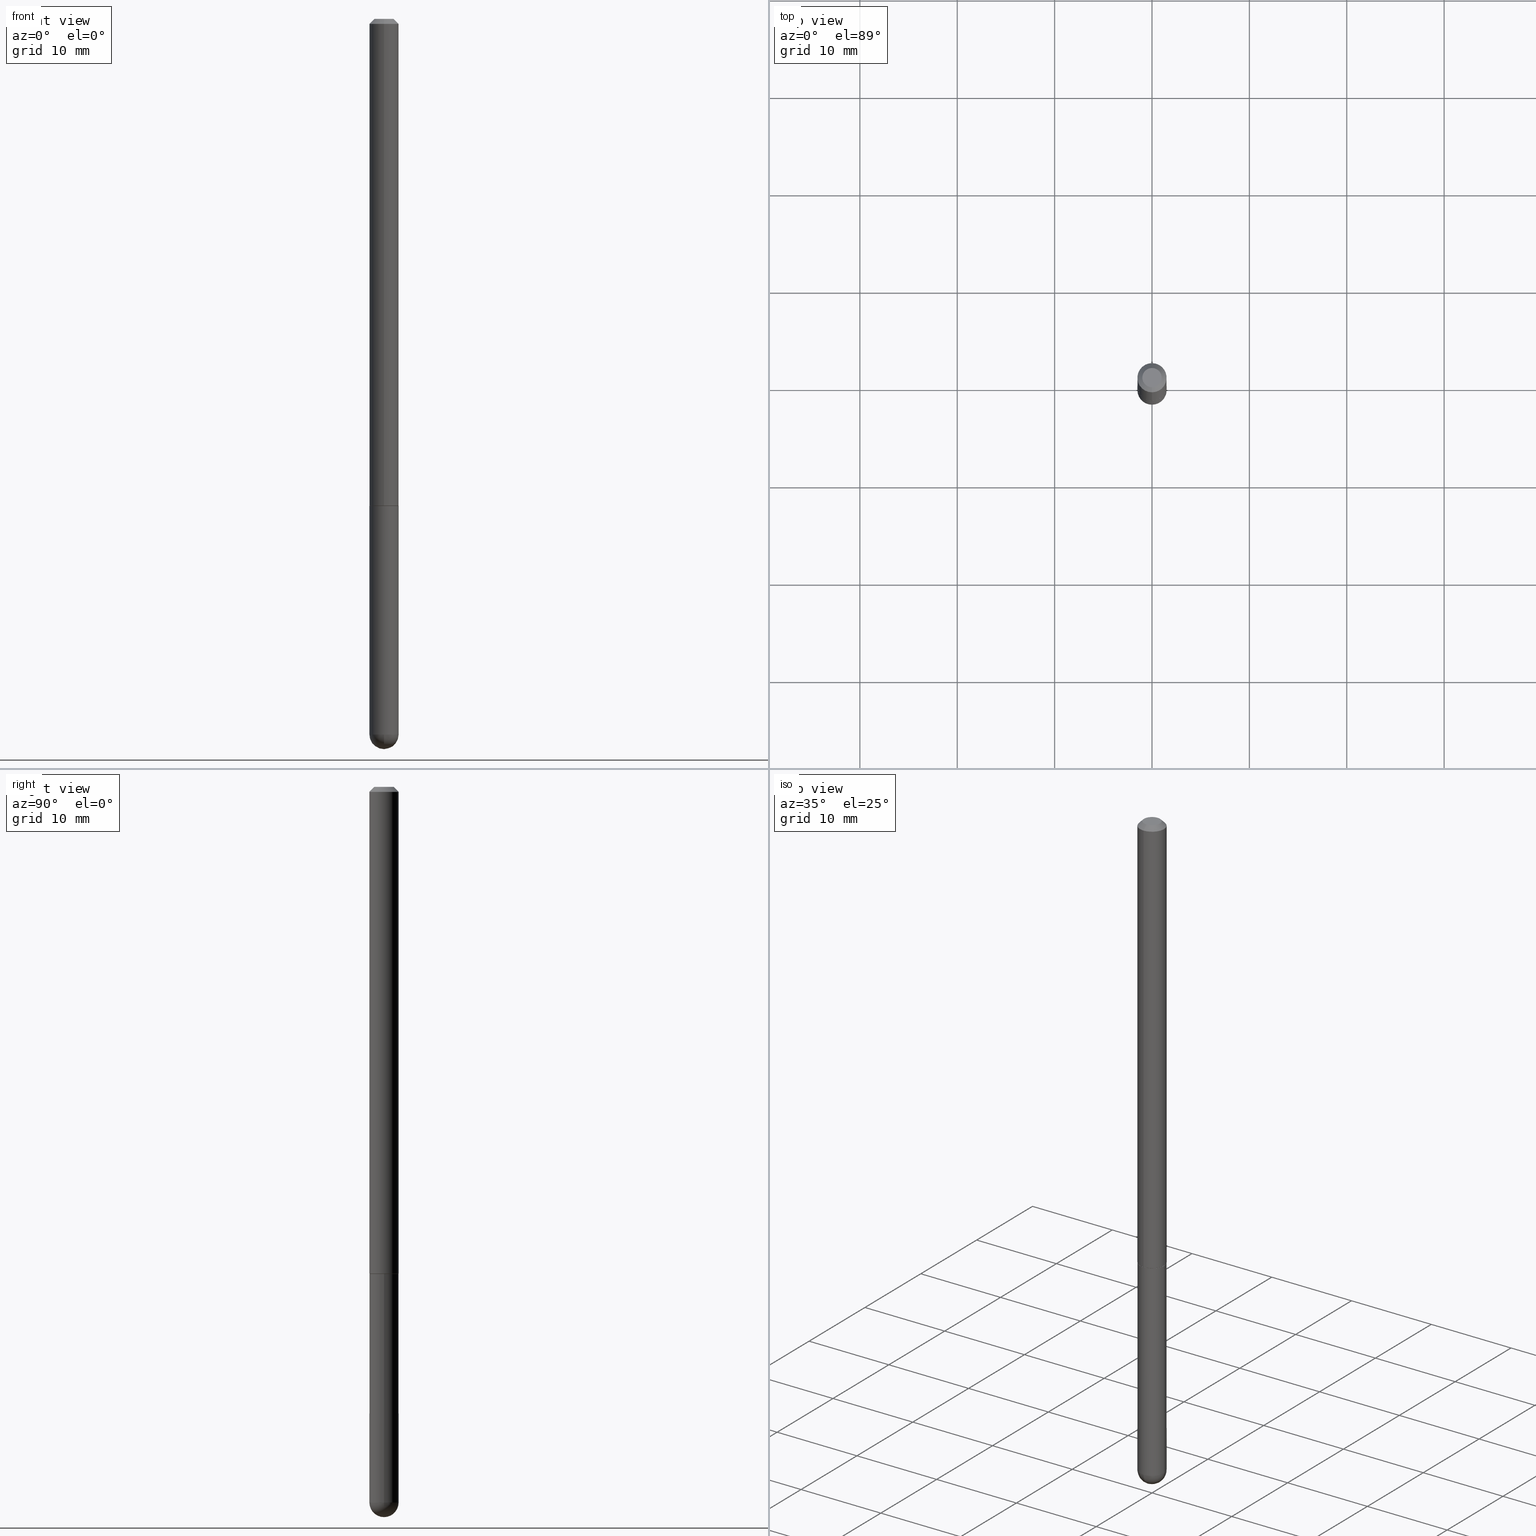
[diagram: canonical four-view strip — front | top / right | iso, engineering-drawing reading convention]
A machine part, canonical four-view strip (front | top / right | iso — engineering-drawing reading convention). The complete STEP part file that produces these views, byte-faithful:
ISO-10303-21;
HEADER;
FILE_DESCRIPTION (( 'STEP AP203' ),
    '1' );
FILE_NAME ('43502.STEP',
    '2024-04-10T11:43:39',
    ( '' ),
    ( '' ),
    'SwSTEP 2.0',
    'SolidWorks 2023',
    '' );
FILE_SCHEMA (( 'CONFIG_CONTROL_DESIGN' ));
ENDSEC;

DATA;
#1 = CYLINDRICAL_SURFACE ( 'NONE', #202, 0.05905000000000010935 ) ;
#2 = ORIENTED_EDGE ( 'NONE', *, *, #91, .F. ) ;
#3 = VERTEX_POINT ( 'NONE', #348 ) ;
#4 = LOCAL_TIME ( 7, 43, 39.00000000000000000, #69 ) ;
#5 = EDGE_LOOP ( 'NONE', ( #164, #59, #326, #234, #73 ) ) ;
#6 = CARTESIAN_POINT ( 'NONE',  ( -3.365074267906958048E-16, -0.03905000000000070914, -5.730290039444684587E-16 ) ) ;
#7 = CARTESIAN_POINT ( 'NONE',  ( 4.827955387920569283E-29, -6.852860554336525173E-15, -1.968499999999999694 ) ) ;
#8 = LINE ( 'NONE', #229, #356 ) ;
#9 = ORIENTED_EDGE ( 'NONE', *, *, #318, .F. ) ;
#10 = EDGE_CURVE ( 'NONE', #196, #380, #329, .T. ) ;
#11 = PERSON_AND_ORGANIZATION ( #197, #219 ) ;
#12 = AXIS2_PLACEMENT_3D ( 'NONE', #41, #78, #293 ) ;
#13 = PERSON_AND_ORGANIZATION ( #197, #219 ) ;
#14 = DIRECTION ( 'NONE',  ( 6.982962677686265922E-15, 1.000000000000000000, -3.469747663417776213E-15 ) ) ;
#15 = CARTESIAN_POINT ( 'NONE',  ( 4.195754854663646379E-16, 0.05904999999999335780, -1.967500000000000027 ) ) ;
#16 = FACE_OUTER_BOUND ( 'NONE', #40, .T. ) ;
#17 = DIRECTION ( 'NONE',  ( -1.000000000000000000, 6.982962677686265922E-15, -4.883557194083112340E-29 ) ) ;
#18 = DIRECTION ( 'NONE',  ( 6.982962677686265922E-15, 1.000000000000000000, -3.469747663417776213E-15 ) ) ;
#19 = AXIS2_PLACEMENT_3D ( 'NONE', #335, #17, #94 ) ;
#20 = CC_DESIGN_APPROVAL ( #125, ( #243 ) ) ;
#21 = DIRECTION ( 'NONE',  ( -2.445468806185136597E-29, 3.491481338843145583E-15, 1.000000000000000000 ) ) ;
#22 = VERTEX_POINT ( 'NONE', #6 ) ;
#23 = FACE_OUTER_BOUND ( 'NONE', #117, .T. ) ;
#24 = DIRECTION ( 'NONE',  ( -2.452606242276133797E-29, 3.481260124123203654E-15, 1.000000000000000000 ) ) ;
#25 = EDGE_LOOP ( 'NONE', ( #231, #295, #254, #381 ) ) ;
#26 = CARTESIAN_POINT ( 'NONE',  ( 3.425143193405141365E-16, 0.03905000000000070914, -8.449154196384955835E-16 ) ) ;
#27 = EDGE_CURVE ( 'NONE', #178, #187, #145, .T. ) ;
#28 = CIRCLE ( 'NONE', #134, 0.05905000000000020649 ) ;
#29 = CIRCLE ( 'NONE', #268, 0.05905000000000001914 ) ;
#30 = COORDINATED_UNIVERSAL_TIME_OFFSET ( 5, 0, .BEHIND. ) ;
#31 = ORIENTED_EDGE ( 'NONE', *, *, #224, .T. ) ;
#32 = LINE ( 'NONE', #401, #407 ) ;
#33 = CARTESIAN_POINT ( 'NONE',  ( 0.000000000000000000, 0.000000000000000000, 0.000000000000000000 ) ) ;
#34 = EDGE_CURVE ( 'NONE', #22, #364, #8, .T. ) ;
#35 = LENGTH_MEASURE_WITH_UNIT ( LENGTH_MEASURE( 0.02539999999999999897 ), #314 );
#36 = APPROVAL_STATUS ( 'not_yet_approved' ) ;
#37 = DIRECTION ( 'NONE',  ( -6.982962677686265922E-15, -1.000000000000000000, 3.481260124123204048E-15 ) ) ;
#38 = CC_DESIGN_SECURITY_CLASSIFICATION ( #194, ( #243 ) ) ;
#39 = EDGE_LOOP ( 'NONE', ( #292, #289, #359, #100 ) ) ;
#40 = EDGE_LOOP ( 'NONE', ( #74, #230, #351, #110 ) ) ;
#41 = CARTESIAN_POINT ( 'NONE',  ( 4.905212484552284025E-31, -6.962520248246431022E-17, -0.02000000000000006981 ) ) ;
#42 = ADVANCED_FACE ( 'NONE', ( #195 ), #320, .F. ) ;
#43 =( GEOMETRIC_REPRESENTATION_CONTEXT ( 3 ) GLOBAL_UNCERTAINTY_ASSIGNED_CONTEXT ( ( #369 ) ) GLOBAL_UNIT_ASSIGNED_CONTEXT ( ( #133, #287, #279 ) ) REPRESENTATION_CONTEXT ( 'NONE', 'WORKASPACE' ) );
#44 = DIRECTION ( 'NONE',  ( 1.000000000000000000, -6.982962677686270655E-15, 0.000000000000000000 ) ) ;
#45 = ORIENTED_EDGE ( 'NONE', *, *, #249, .T. ) ;
#46 = CARTESIAN_POINT ( 'NONE',  ( 6.745455579984352556E-29, -1.057765649241740097E-14, -2.893749999999999822 ) ) ;
#47 = ADVANCED_FACE ( 'NONE', ( #209 ), #64, .T. ) ;
#48 = EDGE_CURVE ( 'NONE', #76, #267, #271, .T. ) ;
#49 = CALENDAR_DATE ( 2024, 10, 4 ) ;
#50 = DIRECTION ( 'NONE',  ( 2.452606242276133797E-29, -3.481260124123203654E-15, -1.000000000000000000 ) ) ;
#51 = PERSON_AND_ORGANIZATION ( #197, #219 ) ;
#52 = DIRECTION ( 'NONE',  ( -6.982962677686265922E-15, -1.000000000000000000, 4.706025828879006993E-15 ) ) ;
#53 = FACE_OUTER_BOUND ( 'NONE', #5, .T. ) ;
#54 = AXIS2_PLACEMENT_3D ( 'NONE', #33, #221, #129 ) ;
#55 = CC_DESIGN_DATE_AND_TIME_ASSIGNMENT ( #344, #193, ( #147 ) ) ;
#56 = DIRECTION ( 'NONE',  ( -4.937700262164884886E-15, -0.7071067811865933139, 0.7071067811865017205 ) ) ;
#57 = APPROVAL_ROLE ( '' ) ;
#58 = CIRCLE ( 'NONE', #343, 0.05905000000000001914 ) ;
#59 = ORIENTED_EDGE ( 'NONE', *, *, #10, .T. ) ;
#60 = APPLICATION_PROTOCOL_DEFINITION ( 'international standard', 'config_control_design', 1994, #406 ) ;
#61 = EDGE_CURVE ( 'NONE', #201, #144, #89, .T. ) ;
#62 = CARTESIAN_POINT ( 'NONE',  ( 6.745455579984352556E-29, -1.057765649241740097E-14, -2.893749999999999822 ) ) ;
#63 = MECHANICAL_CONTEXT ( 'NONE', #346, 'mechanical' ) ;
#64 = CYLINDRICAL_SURFACE ( 'NONE', #87, 0.05905000000000010935 ) ;
#65 = DIRECTION ( 'NONE',  ( -2.452606242276133797E-29, 3.481260124123203654E-15, 1.000000000000000000 ) ) ;
#66 = VECTOR ( 'NONE', #56, 39.37007874015748143 ) ;
#67 = CIRCLE ( 'NONE', #283, 0.05905000000000025506 ) ;
#68 = APPROVAL_ROLE ( '' ) ;
#69 = COORDINATED_UNIVERSAL_TIME_OFFSET ( 5, 0, .BEHIND. ) ;
#70 = DIRECTION ( 'NONE',  ( -2.445468806185136597E-29, 3.491481338843145583E-15, 1.000000000000000000 ) ) ;
#71 = CARTESIAN_POINT ( 'NONE',  ( 1.738829672240105869E-44, -2.468116690021116626E-30, -7.089722117914819718E-16 ) ) ;
#72 = AXIS2_PLACEMENT_3D ( 'NONE', #327, #154, #260 ) ;
#73 = ORIENTED_EDGE ( 'NONE', *, *, #304, .F. ) ;
#74 = ORIENTED_EDGE ( 'NONE', *, *, #34, .F. ) ;
#75 = ADVANCED_FACE ( 'NONE', ( #122 ), #247, .T. ) ;
#76 = VERTEX_POINT ( 'NONE', #280 ) ;
#77 = CARTESIAN_POINT ( 'NONE',  ( 4.123439461173745750E-16, 0.05904999999999994975, -0.02000000000000027450 ) ) ;
#78 = DIRECTION ( 'NONE',  ( -2.452606242276133797E-29, 3.481260124123203654E-15, 1.000000000000000000 ) ) ;
#79 = ORIENTED_EDGE ( 'NONE', *, *, #61, .F. ) ;
#80 = AXIS2_PLACEMENT_3D ( 'NONE', #158, #21, #399 ) ;
#81 = LOCAL_TIME ( 7, 43, 39.00000000000000000, #92 ) ;
#82 = ORIENTED_EDGE ( 'NONE', *, *, #61, .T. ) ;
#83 = EDGE_LOOP ( 'NONE', ( #113, #290 ) ) ;
#84 = CARTESIAN_POINT ( 'NONE',  ( 4.827955387920569283E-29, -6.852860554336525173E-15, -1.968499999999999694 ) ) ;
#85 = FACE_OUTER_BOUND ( 'NONE', #259, .T. ) ;
#86 = DIRECTION ( 'NONE',  ( -2.445468806185136597E-29, 3.491481338843145583E-15, 1.000000000000000000 ) ) ;
#87 = AXIS2_PLACEMENT_3D ( 'NONE', #237, #150, #300 ) ;
#88 = DIRECTION ( 'NONE',  ( -2.452606242276133797E-29, 3.481260124123203654E-15, 1.000000000000000000 ) ) ;
#89 = CIRCLE ( 'NONE', #80, 0.05905000000000001914 ) ;
#90 = AXIS2_PLACEMENT_3D ( 'NONE', #387, #392, #118 ) ;
#91 = EDGE_CURVE ( 'NONE', #267, #364, #245, .T. ) ;
#92 = COORDINATED_UNIVERSAL_TIME_OFFSET ( 5, 0, .BEHIND. ) ;
#93 = CARTESIAN_POINT ( 'NONE',  ( 4.905212484552284025E-31, -6.962520248246431022E-17, -0.02000000000000006981 ) ) ;
#94 = DIRECTION ( 'NONE',  ( 6.982962677686265922E-15, 1.000000000000000000, 0.000000000000000000 ) ) ;
#95 = FACE_OUTER_BOUND ( 'NONE', #108, .T. ) ;
#96 = LOCAL_TIME ( 7, 43, 39.00000000000000000, #312 ) ;
#97 = DIRECTION ( 'NONE',  ( -1.000000000000000000, 7.105427357601001070E-15, -4.926315508542082329E-29 ) ) ;
#98 = DIRECTION ( 'NONE',  ( -2.452606242276133237E-29, 3.481260124123204048E-15, 1.000000000000000000 ) ) ;
#99 = EDGE_CURVE ( 'NONE', #267, #178, #28, .T. ) ;
#100 = ORIENTED_EDGE ( 'NONE', *, *, #347, .F. ) ;
#101 = CARTESIAN_POINT ( 'NONE',  ( -4.195754854662709114E-16, -0.05905000000001047605, -2.893749999999999822 ) ) ;
#102 = APPROVAL_ROLE ( '' ) ;
#103 = SPHERICAL_SURFACE ( 'NONE', #152, 0.05905000000000025506 ) ;
#104 = PERSON_AND_ORGANIZATION ( #197, #219 ) ;
#105 = PLANE ( 'NONE',  #263 ) ;
#106 = PERSON_AND_ORGANIZATION_ROLE ( 'creator' ) ;
#107 = ADVANCED_FACE ( 'NONE', ( #95 ), #167, .T. ) ;
#108 = EDGE_LOOP ( 'NONE', ( #353, #321, #266, #198 ) ) ;
#109 = PRODUCT ( '43502', '43502', '', ( #63 ) ) ;
#110 = ORIENTED_EDGE ( 'NONE', *, *, #347, .T. ) ;
#111 = ORIENTED_EDGE ( 'NONE', *, *, #99, .F. ) ;
#112 = EDGE_CURVE ( 'NONE', #178, #267, #375, .T. ) ;
#113 = ORIENTED_EDGE ( 'NONE', *, *, #168, .T. ) ;
#114 = ORIENTED_EDGE ( 'NONE', *, *, #205, .T. ) ;
#115 = PERSON_AND_ORGANIZATION_ROLE ( 'classification_officer' ) ;
#116 = CC_DESIGN_PERSON_AND_ORGANIZATION_ASSIGNMENT ( #51, #179, ( #243 ) ) ;
#117 = EDGE_LOOP ( 'NONE', ( #31, #236, #9, #146, #82 ) ) ;
#118 = DIRECTION ( 'NONE',  ( 1.000000000000000000, -6.982962677686270655E-15, 0.000000000000000000 ) ) ;
#119 = CARTESIAN_POINT ( 'NONE',  ( 0.000000000000000000, 0.000000000000000000, 0.000000000000000000 ) ) ;
#120 = CIRCLE ( 'NONE', #338, 0.03905000000000070914 ) ;
#121 = CIRCLE ( 'NONE', #398, 0.05905000000000025506 ) ;
#122 = FACE_OUTER_BOUND ( 'NONE', #171, .T. ) ;
#123 = DIRECTION ( 'NONE',  ( -2.445468806185136877E-29, 3.491481338843145188E-15, 1.000000000000000000 ) ) ;
#124 = DIRECTION ( 'NONE',  ( 6.982962677686265922E-15, 1.000000000000000000, 0.000000000000000000 ) ) ;
#125 = APPROVAL ( #36, 'UNSPECIFIED' ) ;
#126 = CLOSED_SHELL ( 'NONE', ( #330, #367, #75, #241, #294 ) ) ;
#127 = AXIS2_PLACEMENT_3D ( 'NONE', #151, #396, #176 ) ;
#128 = DIRECTION ( 'NONE',  ( -2.452606242276133797E-29, 3.481260124123203654E-15, 1.000000000000000000 ) ) ;
#129 = DIRECTION ( 'NONE',  ( 1.000000000000000000, 0.000000000000000000, 0.000000000000000000 ) ) ;
#130 = DIRECTION ( 'NONE',  ( -6.982962677686265922E-15, -1.000000000000000000, 4.706025828879006993E-15 ) ) ;
#131 = ORIENTED_EDGE ( 'NONE', *, *, #304, .T. ) ;
#132 = DIRECTION ( 'NONE',  ( 4.937700262164541731E-15, 0.7071067811865442421, -0.7071067811865507924 ) ) ;
#133 =( CONVERSION_BASED_UNIT ( 'INCH', #35 ) LENGTH_UNIT ( ) NAMED_UNIT ( #354 ) );
#134 = AXIS2_PLACEMENT_3D ( 'NONE', #395, #185, #402 ) ;
#135 = APPROVAL_PERSON_ORGANIZATION ( #11, #160, #57 ) ;
#136 = ADVANCED_FACE ( 'NONE', ( #235 ), #105, .F. ) ;
#137 = DIRECTION ( 'NONE',  ( -2.452606242276133797E-29, 3.481260124123203654E-15, 1.000000000000000000 ) ) ;
#138 = DIRECTION ( 'NONE',  ( 6.982962677686266711E-15, 1.000000000000000000, 0.000000000000000000 ) ) ;
#139 = EDGE_LOOP ( 'NONE', ( #285, #114, #111, #386 ) ) ;
#140 = CIRCLE ( 'NONE', #388, 0.05804999999999999744 ) ;
#141 = CIRCLE ( 'NONE', #265, 0.05905000000000001914 ) ;
#142 = CARTESIAN_POINT ( 'NONE',  ( 7.076575357898237682E-29, -1.010347412427735067E-14, -2.893749999999999822 ) ) ;
#143 = MANIFOLD_SOLID_BREP ( 'Body-Move/Copy2[2]', #282 ) ;
#144 = VERTEX_POINT ( 'NONE', #222 ) ;
#145 = LINE ( 'NONE', #203, #217 ) ;
#146 = ORIENTED_EDGE ( 'NONE', *, *, #397, .F. ) ;
#147 = PRODUCT_DEFINITION ( 'UNKNOWN', '', #243, #148 ) ;
#148 = DESIGN_CONTEXT ( 'detailed design', #406, 'design' ) ;
#149 = ORIENTED_EDGE ( 'NONE', *, *, #27, .T. ) ;
#150 = DIRECTION ( 'NONE',  ( -2.452606242276133797E-29, 3.481260124123203654E-15, 1.000000000000000000 ) ) ;
#151 = CARTESIAN_POINT ( 'NONE',  ( 1.738829672240105869E-44, -2.468116690021116626E-30, -7.089722117914819718E-16 ) ) ;
#152 = AXIS2_PLACEMENT_3D ( 'NONE', #62, #409, #124 ) ;
#153 = SHAPE_DEFINITION_REPRESENTATION ( #345, #223 ) ;
#154 = DIRECTION ( 'NONE',  ( 2.438088387897960049E-29, -3.491481338843145188E-15, -1.000000000000000000 ) ) ;
#155 = DIRECTION ( 'NONE',  ( -2.445468806185136597E-29, 3.491481338843145583E-15, 1.000000000000000000 ) ) ;
#156 = EDGE_CURVE ( 'NONE', #350, #76, #140, .T. ) ;
#157 = DIRECTION ( 'NONE',  ( 1.000000000000000000, -6.982962677686270655E-15, 0.000000000000000000 ) ) ;
#158 = CARTESIAN_POINT ( 'NONE',  ( 7.076575357898237682E-29, -1.010347412427735067E-14, -2.893749999999999822 ) ) ;
#159 = CARTESIAN_POINT ( 'NONE',  ( 7.076575357898237682E-29, -1.010347412427735067E-14, -2.893749999999999822 ) ) ;
#160 = APPROVAL ( #391, 'UNSPECIFIED' ) ;
#161 = CARTESIAN_POINT ( 'NONE',  ( 0.000000000000000000, 0.000000000000000000, 0.000000000000000000 ) ) ;
#162 = DIRECTION ( 'NONE',  ( -7.105427357601001070E-15, -1.000000000000000000, 0.000000000000000000 ) ) ;
#163 = ADVANCED_FACE ( 'NONE', ( #166 ), #1, .T. ) ;
#164 = ORIENTED_EDGE ( 'NONE', *, *, #306, .F. ) ;
#165 = DIRECTION ( 'NONE',  ( -2.445468806185136597E-29, 3.491481338843145583E-15, 1.000000000000000000 ) ) ;
#166 = FACE_OUTER_BOUND ( 'NONE', #39, .T. ) ;
#167 = CONICAL_SURFACE ( 'NONE', #324, 0.05905000000000001914, 0.7853981633974471688 ) ;
#168 = EDGE_CURVE ( 'NONE', #352, #22, #120, .T. ) ;
#169 = CIRCLE ( 'NONE', #331, 0.05905000000000001914 ) ;
#170 = DATE_AND_TIME ( #207, #96 ) ;
#171 = EDGE_LOOP ( 'NONE', ( #239, #45, #79, #190 ) ) ;
#172 = CARTESIAN_POINT ( 'NONE',  ( 2.726846925636536486E-16, 0.03905000000000070914, -4.904293137427545976E-16 ) ) ;
#173 = CARTESIAN_POINT ( 'NONE',  ( 4.827955387920569283E-29, -6.852860554336525173E-15, -1.968499999999999694 ) ) ;
#174 = ORIENTED_EDGE ( 'NONE', *, *, #156, .T. ) ;
#175 = CIRCLE ( 'NONE', #127, 0.03905000000000070914 ) ;
#176 = DIRECTION ( 'NONE',  ( -6.982962677686265922E-15, -1.000000000000000000, 3.481260124123203259E-15 ) ) ;
#177 = PRODUCT_RELATED_PRODUCT_CATEGORY ( 'detail', '', ( #109 ) ) ;
#178 = VERTEX_POINT ( 'NONE', #15 ) ;
#179 = PERSON_AND_ORGANIZATION_ROLE ( 'design_supplier' ) ;
#180 = LINE ( 'NONE', #182, #311 ) ;
#181 = DATE_AND_TIME ( #49, #81 ) ;
#182 = CARTESIAN_POINT ( 'NONE',  ( 4.124700581087863588E-16, 0.05804999999999314181, -1.968500000000000139 ) ) ;
#183 = EDGE_CURVE ( 'NONE', #22, #352, #175, .T. ) ;
#184 = AXIS2_PLACEMENT_3D ( 'NONE', #286, #284, #220 ) ;
#185 = DIRECTION ( 'NONE',  ( -2.452606242276133797E-29, 3.481260124123203654E-15, 1.000000000000000000 ) ) ;
#186 = CC_DESIGN_APPROVAL ( #160, ( #194 ) ) ;
#187 = VERTEX_POINT ( 'NONE', #77 ) ;
#188 = ADVANCED_FACE ( 'NONE', ( #199 ), #412, .T. ) ;
#189 = AXIS2_PLACEMENT_3D ( 'NONE', #93, #50, #18 ) ;
#190 = ORIENTED_EDGE ( 'NONE', *, *, #253, .F. ) ;
#191 = PERSON_AND_ORGANIZATION ( #197, #219 ) ;
#192 = CARTESIAN_POINT ( 'NONE',  ( 4.160227717875875531E-16, 0.05804999999999314181, -1.968500000000000139 ) ) ;
#193 = DATE_TIME_ROLE ( 'creation_date' ) ;
#194 = SECURITY_CLASSIFICATION ( '', '', #296 ) ;
#195 = FACE_OUTER_BOUND ( 'NONE', #83, .T. ) ;
#196 = VERTEX_POINT ( 'NONE', #242 ) ;
#197 = PERSON ( 'UNSPECIFIED', 'UNSPECIFIED', 'UNSPECIFIED', ('UNSPECIFIED'), ('UNSPECIFIED'), ('UNSPECIFIED') ) ;
#198 = ORIENTED_EDGE ( 'NONE', *, *, #378, .F. ) ;
#199 = FACE_OUTER_BOUND ( 'NONE', #139, .T. ) ;
#200 = APPROVAL ( #377, 'UNSPECIFIED' ) ;
#201 = VERTEX_POINT ( 'NONE', #238 ) ;
#202 = AXIS2_PLACEMENT_3D ( 'NONE', #161, #137, #257 ) ;
#203 = CARTESIAN_POINT ( 'NONE',  ( 4.195754854663398874E-16, 0.05905000000000010935, -2.055684103294755676E-16 ) ) ;
#204 = ORIENTED_EDGE ( 'NONE', *, *, #318, .T. ) ;
#205 = EDGE_CURVE ( 'NONE', #350, #178, #180, .T. ) ;
#206 = EDGE_CURVE ( 'NONE', #76, #350, #305, .T. ) ;
#207 = CALENDAR_DATE ( 2024, 10, 4 ) ;
#208 = CARTESIAN_POINT ( 'NONE',  ( 4.905212484552284025E-31, -6.962520248246431022E-17, -0.02000000000000006981 ) ) ;
#209 = FACE_OUTER_BOUND ( 'NONE', #358, .T. ) ;
#210 = CARTESIAN_POINT ( 'NONE',  ( 4.813905344975440714E-29, -6.872981015512730918E-15, -1.968499999999999694 ) ) ;
#211 = AXIS2_PLACEMENT_3D ( 'NONE', #142, #70, #44 ) ;
#212 = CIRCLE ( 'NONE', #90, 0.05905000000000001914 ) ;
#213 = DIRECTION ( 'NONE',  ( -6.982962677686265922E-15, -1.000000000000000000, 4.626330217890353559E-15 ) ) ;
#214 = DIRECTION ( 'NONE',  ( 1.000000000000000000, -6.982962677686270655E-15, 0.000000000000000000 ) ) ;
#215 = DATE_AND_TIME ( #366, #357 ) ;
#216 = CARTESIAN_POINT ( 'NONE',  ( -4.123439461173747722E-16, -0.05905000000000010935, 2.055684103294755676E-16 ) ) ;
#217 = VECTOR ( 'NONE', #325, 39.37007874015748143 ) ;
#218 = CALENDAR_DATE ( 2024, 10, 4 ) ;
#219 = ORGANIZATION ( 'UNSPECIFIED', 'UNSPECIFIED', '' ) ;
#220 = DIRECTION ( 'NONE',  ( 1.000000000000000000, -6.982962677686266711E-15, 4.876176775795935793E-29 ) ) ;
#221 = DIRECTION ( 'NONE',  ( 0.000000000000000000, 0.000000000000000000, 1.000000000000000000 ) ) ;
#222 = CARTESIAN_POINT ( 'NONE',  ( 4.123439461174440441E-16, 0.05904999999998979815, -2.893749999999999822 ) ) ;
#223 = ADVANCED_BREP_SHAPE_REPRESENTATION ( '43502', ( #403, #143, #54 ), #43 ) ;
#224 = EDGE_CURVE ( 'NONE', #144, #196, #212, .T. ) ;
#225 = FACE_OUTER_BOUND ( 'NONE', #372, .T. ) ;
#226 = VECTOR ( 'NONE', #132, 39.37007874015748143 ) ;
#227 = ORIENTED_EDGE ( 'NONE', *, *, #48, .T. ) ;
#228 = APPROVAL_DATE_TIME ( #374, #200 ) ;
#229 = CARTESIAN_POINT ( 'NONE',  ( -4.051124067684085231E-16, -0.05905000000000008159, -0.01999999999999986511 ) ) ;
#230 = ORIENTED_EDGE ( 'NONE', *, *, #168, .F. ) ;
#231 = ORIENTED_EDGE ( 'NONE', *, *, #249, .F. ) ;
#232 = AXIS2_PLACEMENT_3D ( 'NONE', #7, #269, #52 ) ;
#233 = DIRECTION ( 'NONE',  ( -6.982962677686265922E-15, -1.000000000000000000, 4.706025828879006993E-15 ) ) ;
#234 = ORIENTED_EDGE ( 'NONE', *, *, #397, .T. ) ;
#235 = FACE_OUTER_BOUND ( 'NONE', #264, .T. ) ;
#236 = ORIENTED_EDGE ( 'NONE', *, *, #306, .T. ) ;
#237 = CARTESIAN_POINT ( 'NONE',  ( 0.000000000000000000, 0.000000000000000000, 0.000000000000000000 ) ) ;
#238 = CARTESIAN_POINT ( 'NONE',  ( 0.05905000000000001914, -8.900571516012416899E-15, -2.893749999999999822 ) ) ;
#239 = ORIENTED_EDGE ( 'NONE', *, *, #323, .F. ) ;
#240 = CONICAL_SURFACE ( 'NONE', #189, 0.05905000000000001914, 0.7853981633974471688 ) ;
#241 = ADVANCED_FACE ( 'NONE', ( #85 ), #360, .F. ) ;
#242 = CARTESIAN_POINT ( 'NONE',  ( -0.05905000000000001914, -8.068652084428701697E-15, -2.893749999999999822 ) ) ;
#243 = PRODUCT_DEFINITION_FORMATION_WITH_SPECIFIED_SOURCE ( 'ANY', '', #109, .NOT_KNOWN. ) ;
#244 = COORDINATED_UNIVERSAL_TIME_OFFSET ( 5, 0, .BEHIND. ) ;
#245 = LINE ( 'NONE', #216, #276 ) ;
#246 = CARTESIAN_POINT ( 'NONE',  ( -0.05905000000000001914, 4.195754854663392958E-16, -2.904631170795522943E-30 ) ) ;
#247 = SPHERICAL_SURFACE ( 'NONE', #19, 0.05905000000000025506 ) ;
#248 = ORIENTED_EDGE ( 'NONE', *, *, #112, .F. ) ;
#249 = EDGE_CURVE ( 'NONE', #336, #144, #67, .T. ) ;
#250 = EDGE_CURVE ( 'NONE', #364, #187, #291, .T. ) ;
#251 = CARTESIAN_POINT ( 'NONE',  ( 6.745455579984352556E-29, -1.057765649241740097E-14, -2.893749999999999822 ) ) ;
#252 = APPLICATION_PROTOCOL_DEFINITION ( 'international standard', 'config_control_design', 1994, #346 ) ;
#253 = EDGE_CURVE ( 'NONE', #380, #201, #29, .T. ) ;
#254 = ORIENTED_EDGE ( 'NONE', *, *, #10, .F. ) ;
#255 = DIRECTION ( 'NONE',  ( -2.445468806185136877E-29, 3.491481338843145188E-15, 1.000000000000000000 ) ) ;
#256 = AXIS2_PLACEMENT_3D ( 'NONE', #341, #65, #130 ) ;
#257 = DIRECTION ( 'NONE',  ( -6.982962677686265922E-15, -1.000000000000000000, 3.481260124123203654E-15 ) ) ;
#258 = VERTEX_POINT ( 'NONE', #303 ) ;
#259 = EDGE_LOOP ( 'NONE', ( #204, #131 ) ) ;
#260 = DIRECTION ( 'NONE',  ( -1.000000000000000000, 6.982962677686265922E-15, -4.876176775795935793E-29 ) ) ;
#261 = CARTESIAN_POINT ( 'NONE',  ( 4.827955387920569283E-29, -6.852860554336525173E-15, -1.968499999999999694 ) ) ;
#262 = ORIENTED_EDGE ( 'NONE', *, *, #206, .F. ) ;
#263 = AXIS2_PLACEMENT_3D ( 'NONE', #261, #98, #37 ) ;
#264 = EDGE_LOOP ( 'NONE', ( #262, #322 ) ) ;
#265 = AXIS2_PLACEMENT_3D ( 'NONE', #342, #165, #337 ) ;
#266 = ORIENTED_EDGE ( 'NONE', *, *, #250, .T. ) ;
#267 = VERTEX_POINT ( 'NONE', #333 ) ;
#268 = AXIS2_PLACEMENT_3D ( 'NONE', #159, #155, #214 ) ;
#269 = DIRECTION ( 'NONE',  ( -2.452606242276133797E-29, 3.481260124123203654E-15, 1.000000000000000000 ) ) ;
#270 = CC_DESIGN_PERSON_AND_ORGANIZATION_ASSIGNMENT ( #104, #411, ( #147 ) ) ;
#271 = LINE ( 'NONE', #328, #66 ) ;
#272 = DIRECTION ( 'NONE',  ( -2.452606242276133797E-29, 3.481260124123203654E-15, 1.000000000000000000 ) ) ;
#273 = CARTESIAN_POINT ( 'NONE',  ( 4.825502781678292621E-29, -6.849379294212400691E-15, -1.967499999999999805 ) ) ;
#274 = LINE ( 'NONE', #246, #389 ) ;
#275 = CC_DESIGN_PERSON_AND_ORGANIZATION_ASSIGNMENT ( #191, #408, ( #109 ) ) ;
#276 = VECTOR ( 'NONE', #363, 39.37007874015748143 ) ;
#277 = LOCAL_TIME ( 7, 43, 39.00000000000000000, #30 ) ;
#278 = FACE_OUTER_BOUND ( 'NONE', #25, .T. ) ;
#279 =( NAMED_UNIT ( * ) SI_UNIT ( $, .STERADIAN. ) SOLID_ANGLE_UNIT ( ) );
#280 = CARTESIAN_POINT ( 'NONE',  ( -4.053609834396394049E-16, -0.05805000000000685306, -1.968499999999999472 ) ) ;
#281 = ADVANCED_FACE ( 'NONE', ( #16 ), #240, .T. ) ;
#282 = CLOSED_SHELL ( 'NONE', ( #188, #47, #107, #281, #163, #393, #136, #42 ) ) ;
#283 = AXIS2_PLACEMENT_3D ( 'NONE', #46, #317, #138 ) ;
#284 = DIRECTION ( 'NONE',  ( -2.445468806185136597E-29, 3.491481338843145583E-15, 1.000000000000000000 ) ) ;
#285 = ORIENTED_EDGE ( 'NONE', *, *, #206, .T. ) ;
#286 = CARTESIAN_POINT ( 'NONE',  ( 0.000000000000000000, 0.000000000000000000, 0.000000000000000000 ) ) ;
#287 =( NAMED_UNIT ( * ) PLANE_ANGLE_UNIT ( ) SI_UNIT ( $, .RADIAN. ) );
#288 = AXIS2_PLACEMENT_3D ( 'NONE', #84, #272, #385 ) ;
#289 = ORIENTED_EDGE ( 'NONE', *, *, #112, .T. ) ;
#290 = ORIENTED_EDGE ( 'NONE', *, *, #183, .T. ) ;
#291 = CIRCLE ( 'NONE', #12, 0.05905000000000001914 ) ;
#292 = ORIENTED_EDGE ( 'NONE', *, *, #27, .F. ) ;
#293 = DIRECTION ( 'NONE',  ( -6.982962677686265922E-15, -1.000000000000000000, 3.469747663417776213E-15 ) ) ;
#294 = ADVANCED_FACE ( 'NONE', ( #53 ), #394, .T. ) ;
#295 = ORIENTED_EDGE ( 'NONE', *, *, #323, .T. ) ;
#296 = SECURITY_CLASSIFICATION_LEVEL ( 'unclassified' ) ;
#297 = DIRECTION ( 'NONE',  ( 5.024295867788404755E-15, 0.7071067811865981989, 0.7071067811864968355 ) ) ;
#298 = ORIENTED_EDGE ( 'NONE', *, *, #99, .T. ) ;
#299 = DATE_TIME_ROLE ( 'classification_date' ) ;
#300 = DIRECTION ( 'NONE',  ( -6.982962677686265922E-15, -1.000000000000000000, 3.481260124123203654E-15 ) ) ;
#301 = AXIS2_PLACEMENT_3D ( 'NONE', #119, #86, #362 ) ;
#302 = DIRECTION ( 'NONE',  ( 2.452606242276133797E-29, -3.481260124123203654E-15, -1.000000000000000000 ) ) ;
#303 = CARTESIAN_POINT ( 'NONE',  ( -0.05905000000000001914, -8.068652084428701697E-15, -1.968499999999999694 ) ) ;
#304 = EDGE_CURVE ( 'NONE', #258, #3, #169, .T. ) ;
#305 = CIRCLE ( 'NONE', #232, 0.05804999999999999744 ) ;
#306 = EDGE_CURVE ( 'NONE', #196, #258, #274, .T. ) ;
#307 = PERSON_AND_ORGANIZATION ( #197, #219 ) ;
#308 = CARTESIAN_POINT ( 'NONE',  ( 6.892385391458386628E-29, -1.078021269580160693E-14, -2.952799999999999869 ) ) ;
#309 = AXIS2_PLACEMENT_3D ( 'NONE', #273, #88, #213 ) ;
#310 = CONICAL_SURFACE ( 'NONE', #256, 0.05804999999999999744, 0.7853981633975165577 ) ;
#311 = VECTOR ( 'NONE', #297, 39.37007874015748143 ) ;
#312 = COORDINATED_UNIVERSAL_TIME_OFFSET ( 5, 0, .BEHIND. ) ;
#313 = CC_DESIGN_DATE_AND_TIME_ASSIGNMENT ( #181, #299, ( #194 ) ) ;
#314 =( LENGTH_UNIT ( ) NAMED_UNIT ( * ) SI_UNIT ( $, .METRE. ) );
#315 = APPROVAL_DATE_TIME ( #170, #125 ) ;
#316 = PERSON_AND_ORGANIZATION ( #197, #219 ) ;
#317 = DIRECTION ( 'NONE',  ( 1.000000000000000000, -6.982962677686265922E-15, 4.883557194083112340E-29 ) ) ;
#318 = EDGE_CURVE ( 'NONE', #3, #258, #141, .T. ) ;
#319 = DIRECTION ( 'NONE',  ( -2.452606242276133797E-29, 3.481260124123203654E-15, 1.000000000000000000 ) ) ;
#320 = PLANE ( 'NONE',  #383 ) ;
#321 = ORIENTED_EDGE ( 'NONE', *, *, #34, .T. ) ;
#322 = ORIENTED_EDGE ( 'NONE', *, *, #156, .F. ) ;
#323 = EDGE_CURVE ( 'NONE', #336, #380, #121, .T. ) ;
#324 = AXIS2_PLACEMENT_3D ( 'NONE', #208, #302, #14 ) ;
#325 = DIRECTION ( 'NONE',  ( -2.452606242276134078E-29, 3.481260124123204048E-15, 1.000000000000000000 ) ) ;
#326 = ORIENTED_EDGE ( 'NONE', *, *, #253, .T. ) ;
#327 = CARTESIAN_POINT ( 'NONE',  ( 4.123439461174222518E-16, 0.05904999999999314270, -1.968500000000000139 ) ) ;
#328 = CARTESIAN_POINT ( 'NONE',  ( -4.053609834396394049E-16, -0.05805000000000685306, -1.968499999999999472 ) ) ;
#329 = CIRCLE ( 'NONE', #211, 0.05905000000000001914 ) ;
#330 = ADVANCED_FACE ( 'NONE', ( #23 ), #340, .T. ) ;
#331 = AXIS2_PLACEMENT_3D ( 'NONE', #210, #332, #157 ) ;
#332 = DIRECTION ( 'NONE',  ( -2.445468806185136597E-29, 3.491481338843145583E-15, 1.000000000000000000 ) ) ;
#333 = CARTESIAN_POINT ( 'NONE',  ( -4.123439461173271448E-16, -0.05905000000000704824, -1.967499999999999361 ) ) ;
#334 = APPROVAL_DATE_TIME ( #215, #160 ) ;
#335 = CARTESIAN_POINT ( 'NONE',  ( 6.745455579984352556E-29, -1.057765649241740097E-14, -2.893749999999999822 ) ) ;
#336 = VERTEX_POINT ( 'NONE', #308 ) ;
#337 = DIRECTION ( 'NONE',  ( 1.000000000000000000, -6.982962677686270655E-15, 0.000000000000000000 ) ) ;
#338 = AXIS2_PLACEMENT_3D ( 'NONE', #71, #319, #382 ) ;
#339 = DIRECTION ( 'NONE',  ( 2.452606242276133237E-29, -3.481260124123204048E-15, -1.000000000000000000 ) ) ;
#340 = CYLINDRICAL_SURFACE ( 'NONE', #184, 0.05905000000000001914 ) ;
#341 = CARTESIAN_POINT ( 'NONE',  ( 4.827955387920569283E-29, -6.852860554336525173E-15, -1.968499999999999694 ) ) ;
#342 = CARTESIAN_POINT ( 'NONE',  ( 4.813905344975440714E-29, -6.872981015512730918E-15, -1.968499999999999694 ) ) ;
#343 = AXIS2_PLACEMENT_3D ( 'NONE', #410, #128, #373 ) ;
#344 = DATE_AND_TIME ( #218, #4 ) ;
#345 = PRODUCT_DEFINITION_SHAPE ( 'NONE', 'NONE',  #147 ) ;
#346 = APPLICATION_CONTEXT ( 'configuration controlled 3d designs of mechanical parts and assemblies' ) ;
#347 = EDGE_CURVE ( 'NONE', #187, #364, #58, .T. ) ;
#348 = CARTESIAN_POINT ( 'NONE',  ( 0.05905000000000001914, -7.285324961630105839E-15, -1.968499999999999694 ) ) ;
#349 = DIRECTION ( 'NONE',  ( -4.851104656540957964E-15, -0.7071067811865491270, -0.7071067811865459074 ) ) ;
#350 = VERTEX_POINT ( 'NONE', #192 ) ;
#351 = ORIENTED_EDGE ( 'NONE', *, *, #378, .T. ) ;
#352 = VERTEX_POINT ( 'NONE', #26 ) ;
#353 = ORIENTED_EDGE ( 'NONE', *, *, #183, .F. ) ;
#354 = DIMENSIONAL_EXPONENTS ( 1.000000000000000000, 0.000000000000000000, 0.000000000000000000, 0.000000000000000000, 0.000000000000000000, 0.000000000000000000, 0.000000000000000000 ) ;
#355 = CC_DESIGN_PERSON_AND_ORGANIZATION_ASSIGNMENT ( #13, #115, ( #194 ) ) ;
#356 = VECTOR ( 'NONE', #349, 39.37007874015748143 ) ;
#357 = LOCAL_TIME ( 7, 43, 39.00000000000000000, #244 ) ;
#358 = EDGE_LOOP ( 'NONE', ( #298, #149, #384, #2 ) ) ;
#359 = ORIENTED_EDGE ( 'NONE', *, *, #91, .T. ) ;
#360 = PLANE ( 'NONE',  #72 ) ;
#361 = DIRECTION ( 'NONE',  ( 6.982962677686265922E-15, 1.000000000000000000, -3.481260124123204048E-15 ) ) ;
#362 = DIRECTION ( 'NONE',  ( 1.000000000000000000, -6.982962677686266711E-15, 4.876176775795935793E-29 ) ) ;
#363 = DIRECTION ( 'NONE',  ( -2.452606242276134078E-29, 3.481260124123204048E-15, 1.000000000000000000 ) ) ;
#364 = VERTEX_POINT ( 'NONE', #368 ) ;
#365 = APPROVAL_PERSON_ORGANIZATION ( #307, #200, #102 ) ;
#366 = CALENDAR_DATE ( 2024, 10, 4 ) ;
#367 = ADVANCED_FACE ( 'NONE', ( #278 ), #103, .T. ) ;
#368 = CARTESIAN_POINT ( 'NONE',  ( -4.051124067684085231E-16, -0.05905000000000008159, -0.01999999999999986511 ) ) ;
#369 = UNCERTAINTY_MEASURE_WITH_UNIT (LENGTH_MEASURE( 1.000000000000000082E-05 ), #133, 'distance_accuracy_value', 'NONE');
#370 = CALENDAR_DATE ( 2024, 10, 4 ) ;
#371 = CC_DESIGN_APPROVAL ( #200, ( #147 ) ) ;
#372 = EDGE_LOOP ( 'NONE', ( #390, #174, #227, #248 ) ) ;
#373 = DIRECTION ( 'NONE',  ( -6.982962677686265922E-15, -1.000000000000000000, 3.469747663417776213E-15 ) ) ;
#374 = DATE_AND_TIME ( #370, #277 ) ;
#375 = CIRCLE ( 'NONE', #309, 0.05905000000000020649 ) ;
#376 = APPROVAL_PERSON_ORGANIZATION ( #316, #125, #68 ) ;
#377 = APPROVAL_STATUS ( 'not_yet_approved' ) ;
#378 = EDGE_CURVE ( 'NONE', #352, #187, #405, .T. ) ;
#379 = PERSON_AND_ORGANIZATION ( #197, #219 ) ;
#380 = VERTEX_POINT ( 'NONE', #101 ) ;
#381 = ORIENTED_EDGE ( 'NONE', *, *, #224, .F. ) ;
#382 = DIRECTION ( 'NONE',  ( -6.982962677686265922E-15, -1.000000000000000000, 3.481260124123203259E-15 ) ) ;
#383 = AXIS2_PLACEMENT_3D ( 'NONE', #172, #339, #361 ) ;
#384 = ORIENTED_EDGE ( 'NONE', *, *, #250, .F. ) ;
#385 = DIRECTION ( 'NONE',  ( -6.982962677686265922E-15, -1.000000000000000000, 4.706025828879006993E-15 ) ) ;
#386 = ORIENTED_EDGE ( 'NONE', *, *, #48, .F. ) ;
#387 = CARTESIAN_POINT ( 'NONE',  ( 7.076575357898237682E-29, -1.010347412427735067E-14, -2.893749999999999822 ) ) ;
#388 = AXIS2_PLACEMENT_3D ( 'NONE', #173, #24, #233 ) ;
#389 = VECTOR ( 'NONE', #123, 39.37007874015748143 ) ;
#390 = ORIENTED_EDGE ( 'NONE', *, *, #205, .F. ) ;
#391 = APPROVAL_STATUS ( 'not_yet_approved' ) ;
#392 = DIRECTION ( 'NONE',  ( -2.445468806185136597E-29, 3.491481338843145583E-15, 1.000000000000000000 ) ) ;
#393 = ADVANCED_FACE ( 'NONE', ( #225 ), #310, .T. ) ;
#394 = CYLINDRICAL_SURFACE ( 'NONE', #301, 0.05905000000000001914 ) ;
#395 = CARTESIAN_POINT ( 'NONE',  ( 4.825502781678292621E-29, -6.849379294212400691E-15, -1.967499999999999805 ) ) ;
#396 = DIRECTION ( 'NONE',  ( -2.452606242276133797E-29, 3.481260124123203654E-15, 1.000000000000000000 ) ) ;
#397 = EDGE_CURVE ( 'NONE', #201, #3, #32, .T. ) ;
#398 = AXIS2_PLACEMENT_3D ( 'NONE', #251, #97, #162 ) ;
#399 = DIRECTION ( 'NONE',  ( 1.000000000000000000, -6.982962677686270655E-15, 0.000000000000000000 ) ) ;
#400 = CC_DESIGN_PERSON_AND_ORGANIZATION_ASSIGNMENT ( #379, #106, ( #243 ) ) ;
#401 = CARTESIAN_POINT ( 'NONE',  ( 0.05905000000000001914, -4.123439461173741806E-16, 2.879382386107500921E-30 ) ) ;
#402 = DIRECTION ( 'NONE',  ( -6.982962677686265922E-15, -1.000000000000000000, 4.626330217890353559E-15 ) ) ;
#403 = MANIFOLD_SOLID_BREP ( 'Body-Move/Copy2[1]', #126 ) ;
#404 = CARTESIAN_POINT ( 'NONE',  ( 4.123439461173745750E-16, 0.05904999999999994975, -0.02000000000000027450 ) ) ;
#405 = LINE ( 'NONE', #404, #226 ) ;
#406 = APPLICATION_CONTEXT ( 'configuration controlled 3d designs of mechanical parts and assemblies' ) ;
#407 = VECTOR ( 'NONE', #255, 39.37007874015748143 ) ;
#408 = PERSON_AND_ORGANIZATION_ROLE ( 'design_owner' ) ;
#409 = DIRECTION ( 'NONE',  ( -1.000000000000000000, 6.982962677686265922E-15, -4.883557194083112340E-29 ) ) ;
#410 = CARTESIAN_POINT ( 'NONE',  ( 4.905212484552284025E-31, -6.962520248246431022E-17, -0.02000000000000006981 ) ) ;
#411 = PERSON_AND_ORGANIZATION_ROLE ( 'creator' ) ;
#412 = CONICAL_SURFACE ( 'NONE', #288, 0.05804999999999999744, 0.7853981633975165577 ) ;
ENDSEC;
END-ISO-10303-21;
